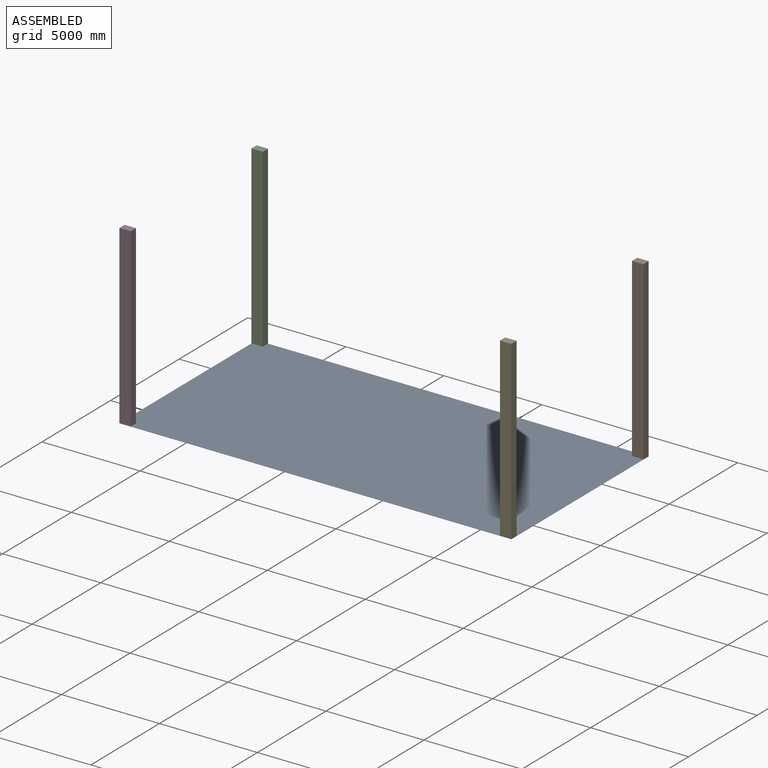
[diagram: assembled view]
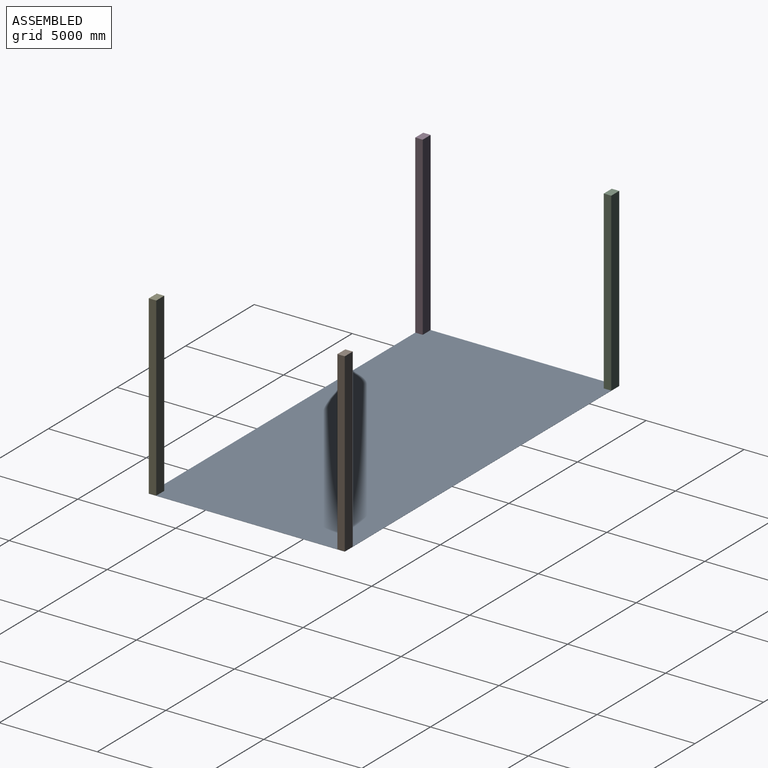
[diagram: assembled view, second angle]
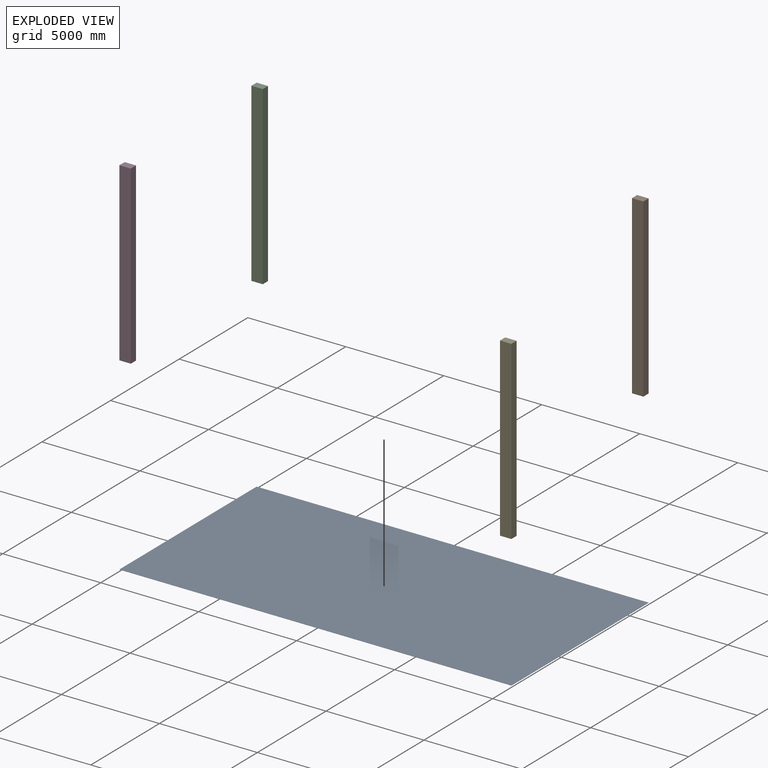
[diagram: exploded view]
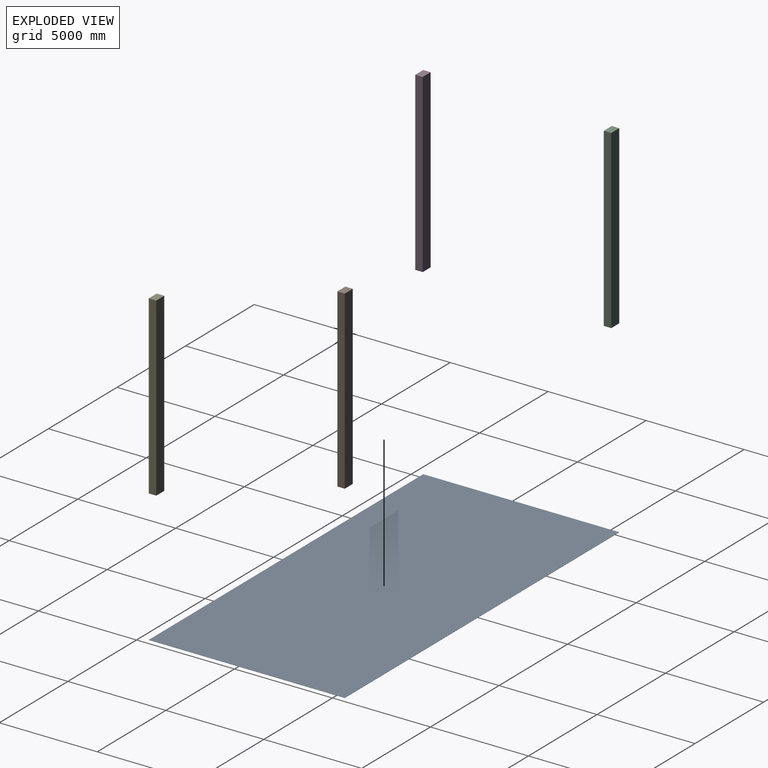
[diagram: exploded view, second angle]
ASSEMBLY  parts=5 mates=4
PART A: 6 faces, bbox 20000x10000x10 mm
  f0: plane 10000x10mm, normal (-1,0,0), area 100000mm2, adj f1,f3,f4,f5
  f1: plane 20000x10mm, normal (0,-1,0), area 200000mm2, adj f0,f2,f4,f5
  f2: plane 10000x10mm, normal (1,0,0), area 100000mm2, adj f1,f3,f4,f5
  f3: plane 20000x10mm, normal (0,1,0), area 200000mm2, adj f0,f2,f4,f5
  f4: plane 20000x10000mm, normal (0,0,1), area 200000000mm2, adj f0,f1,f2,f3
  f5: plane 20000x10000mm, normal (0,0,-1), area 200000000mm2, adj f0,f1,f2,f3
PART B: 6 faces, bbox 580x380x9000 mm
  f0: plane 9000x380mm, normal (-1,0,0), area 3420000mm2, adj f1,f3,f4,f5
  f1: plane 9000x580mm, normal (0,-1,0), area 5220000mm2, adj f0,f2,f4,f5
  f2: plane 9000x380mm, normal (1,0,0), area 3420000mm2, adj f1,f3,f4,f5
  f3: plane 9000x580mm, normal (0,1,0), area 5220000mm2, adj f0,f2,f4,f5
  f4: plane 580x380mm, normal (0,0,1), area 220400mm2, adj f0,f1,f2,f3
  f5: plane 580x380mm, normal (0,0,-1), area 220400mm2, adj f0,f1,f2,f3
PART C: same geometry as B
PART D: same geometry as B
PART E: same geometry as B
PLACE A t=(346.84,872.94,1136.43)mm
PLACE B t=(19766.84,10492.94,1146.43)mm
PLACE C t=(346.84,10492.94,1136.43)mm
PLACE D t=(346.84,872.94,1146.43)mm
PLACE E t=(19766.84,872.94,1146.43)mm
MATE fastened E.f5 <-> A.f4  axis (0,0,-1) through (20346.84,872.94,1146.43)mm
MATE fastened B.f5 <-> A.f4  axis (0,0,-1) through (20346.84,10872.94,1146.43)mm
MATE fastened A.f4 <-> D.f5  axis (0,0,1) through (346.84,872.94,1146.43)mm
MATE fastened C.f5 <-> A.f5  axis (0,0,-1) through (346.84,10872.94,1136.43)mm
